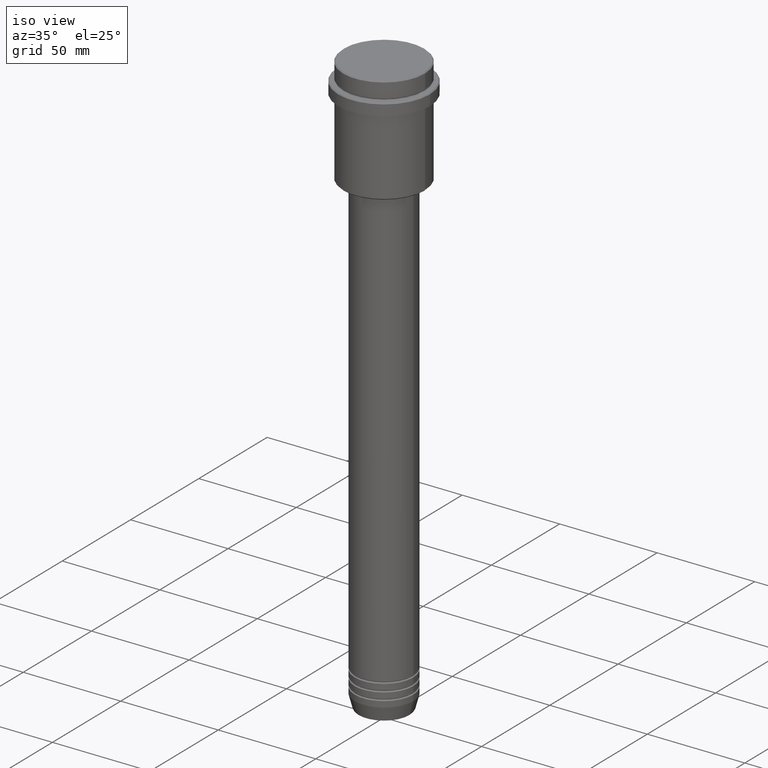
[diagram: clean part render]
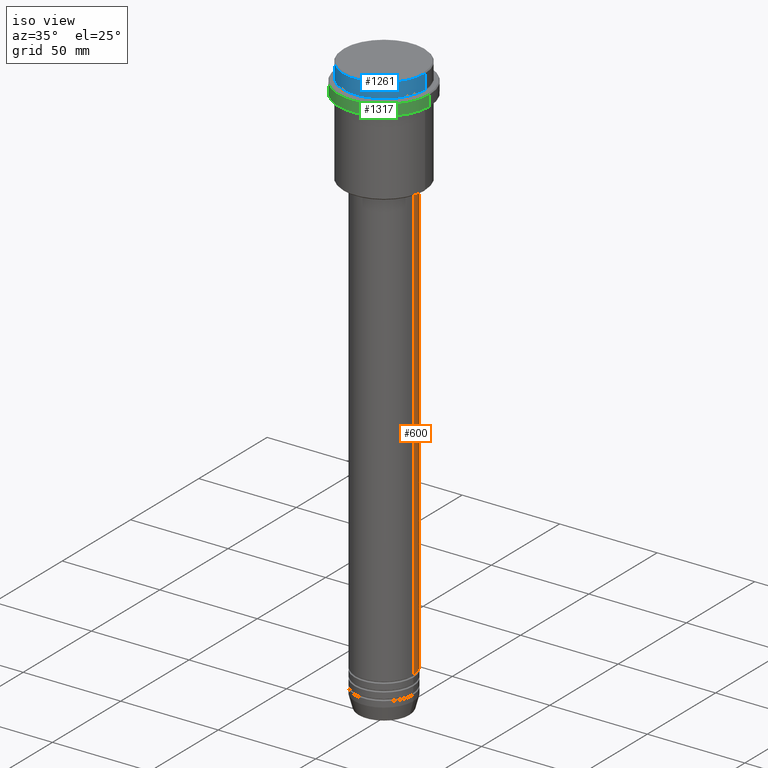
[diagram: same view with three faces highlighted in distinct colors, each labeled with its STEP entity id]
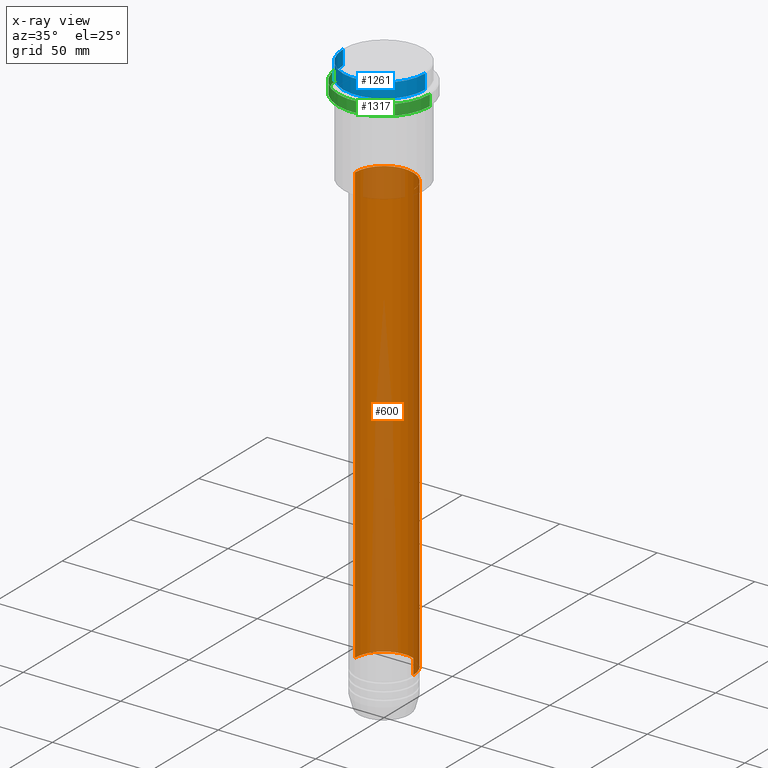
[diagram: x-ray of the same camera — body ghosted, the three highlighted faces saturated]
A machine part, iso view with three faces highlighted in distinct colors.
The next image is the same camera in x-ray (body ghosted, the three faces saturated) — at least one of them is partly hidden behind the body in this view.
Their STEP definitions:

[orange] entity #600 — the highlighted cylindrical surface (edge-blend (fillet) strip) has radius 15 mm, axis along (-0, -0, 1).
#3 = CARTESIAN_POINT ( 'NONE',  ( 15.00000000000000000, 0.000000000000000000, 0.000000000000000000 ) ) ;
#20 = EDGE_CURVE ( 'NONE', #144, #1086, #257, .T. ) ;
#24 = CARTESIAN_POINT ( 'NONE',  ( 0.000000000000000000, 0.000000000000000000, -55.99999999999990763 ) ) ;
#28 = EDGE_CURVE ( 'NONE', #144, #1212, #223, .T. ) ;
#62 = FACE_OUTER_BOUND ( 'NONE', #192, .T. ) ;
#70 = CYLINDRICAL_SURFACE ( 'NONE', #818, 15.00000000000000000 ) ;
#73 = VERTEX_POINT ( 'NONE', #995 ) ;
#87 = CARTESIAN_POINT ( 'NONE',  ( 0.000000000000000000, 0.000000000000000000, -280.9999999999998863 ) ) ;
#132 = LINE ( 'NONE', #568, #386 ) ;
#140 = DIRECTION ( 'NONE',  ( -0.000000000000000000, -0.000000000000000000, 1.000000000000000000 ) ) ;
#144 = VERTEX_POINT ( 'NONE', #627 ) ;
#181 = VECTOR ( 'NONE', #140, 1000.000000000000000 ) ;
#192 = EDGE_LOOP ( 'NONE', ( #560, #264, #1061, #780 ) ) ;
#223 = LINE ( 'NONE', #3, #181 ) ;
#257 = CIRCLE ( 'NONE', #358, 15.00000000000000000 ) ;
#264 = ORIENTED_EDGE ( 'NONE', *, *, #477, .T. ) ;
#292 = DIRECTION ( 'NONE',  ( 1.000000000000000000, 0.000000000000000000, 0.000000000000000000 ) ) ;
#358 = AXIS2_PLACEMENT_3D ( 'NONE', #87, #845, #850 ) ;
#384 = DIRECTION ( 'NONE',  ( 1.000000000000000000, 0.000000000000000000, 0.000000000000000000 ) ) ;
#386 = VECTOR ( 'NONE', #460, 1000.000000000000000 ) ;
#393 = DIRECTION ( 'NONE',  ( -0.000000000000000000, -0.000000000000000000, 1.000000000000000000 ) ) ;
#460 = DIRECTION ( 'NONE',  ( -0.000000000000000000, -0.000000000000000000, 1.000000000000000000 ) ) ;
#477 = EDGE_CURVE ( 'NONE', #1086, #73, #132, .T. ) ;
#560 = ORIENTED_EDGE ( 'NONE', *, *, #20, .T. ) ;
#568 = CARTESIAN_POINT ( 'NONE',  ( -15.00000000000000000, 1.836970198721029589E-15, 0.000000000000000000 ) ) ;
#600 = ADVANCED_FACE ( 'NONE', ( #62 ), #70, .T. ) ;
#612 = AXIS2_PLACEMENT_3D ( 'NONE', #24, #1237, #384 ) ;
#621 = CARTESIAN_POINT ( 'NONE',  ( 15.00000000000000000, 0.000000000000000000, -55.99999999999990763 ) ) ;
#627 = CARTESIAN_POINT ( 'NONE',  ( 15.00000000000000000, 0.000000000000000000, -280.9999999999998863 ) ) ;
#780 = ORIENTED_EDGE ( 'NONE', *, *, #28, .F. ) ;
#818 = AXIS2_PLACEMENT_3D ( 'NONE', #1149, #393, #292 ) ;
#845 = DIRECTION ( 'NONE',  ( -0.000000000000000000, -0.000000000000000000, 1.000000000000000000 ) ) ;
#850 = DIRECTION ( 'NONE',  ( 1.000000000000000000, 0.000000000000000000, 0.000000000000000000 ) ) ;
#933 = CIRCLE ( 'NONE', #612, 15.00000000000000000 ) ;
#995 = CARTESIAN_POINT ( 'NONE',  ( -15.00000000000000000, 1.836970198721029589E-15, -55.99999999999990763 ) ) ;
#1061 = ORIENTED_EDGE ( 'NONE', *, *, #1396, .F. ) ;
#1086 = VERTEX_POINT ( 'NONE', #1389 ) ;
#1149 = CARTESIAN_POINT ( 'NONE',  ( 0.000000000000000000, 0.000000000000000000, 0.000000000000000000 ) ) ;
#1212 = VERTEX_POINT ( 'NONE', #621 ) ;
#1237 = DIRECTION ( 'NONE',  ( -0.000000000000000000, -0.000000000000000000, 1.000000000000000000 ) ) ;
#1389 = CARTESIAN_POINT ( 'NONE',  ( -15.00000000000000000, 1.836970198721029589E-15, -280.9999999999998863 ) ) ;
#1396 = EDGE_CURVE ( 'NONE', #1212, #73, #933, .T. ) ;

[blue] entity #1261 — the highlighted cylindrical surface (partial cylindrical patch) has radius 21 mm, axis along (-0, -0, 1).
#102 = LINE ( 'NONE', #968, #385 ) ;
#220 = ORIENTED_EDGE ( 'NONE', *, *, #945, .T. ) ;
#226 = EDGE_CURVE ( 'NONE', #726, #936, #102, .T. ) ;
#270 = ORIENTED_EDGE ( 'NONE', *, *, #226, .F. ) ;
#271 = CARTESIAN_POINT ( 'NONE',  ( 0.000000000000000000, 0.000000000000000000, -0.4999999999999553690 ) ) ;
#321 = DIRECTION ( 'NONE',  ( 1.000000000000000000, 0.000000000000000000, 0.000000000000000000 ) ) ;
#323 = EDGE_CURVE ( 'NONE', #726, #762, #1142, .T. ) ;
#357 = CIRCLE ( 'NONE', #717, 21.00000000000000000 ) ;
#385 = VECTOR ( 'NONE', #748, 1000.000000000000000 ) ;
#415 = DIRECTION ( 'NONE',  ( -0.000000000000000000, -0.000000000000000000, 1.000000000000000000 ) ) ;
#444 = DIRECTION ( 'NONE',  ( -0.000000000000000000, -0.000000000000000000, 1.000000000000000000 ) ) ;
#448 = CARTESIAN_POINT ( 'NONE',  ( 21.00000000000000000, 0.000000000000000000, -0.4999999999999553690 ) ) ;
#508 = CARTESIAN_POINT ( 'NONE',  ( -21.00000000000000000, 2.571758278209441661E-15, -7.999999999999998224 ) ) ;
#515 = ORIENTED_EDGE ( 'NONE', *, *, #323, .T. ) ;
#534 = CARTESIAN_POINT ( 'NONE',  ( 21.00000000000000000, 0.000000000000000000, -7.999999999999998224 ) ) ;
#687 = CARTESIAN_POINT ( 'NONE',  ( 21.00000000000000000, 0.000000000000000000, 0.000000000000000000 ) ) ;
#694 = DIRECTION ( 'NONE',  ( 0.000000000000000000, 0.000000000000000000, -1.000000000000000000 ) ) ;
#701 = AXIS2_PLACEMENT_3D ( 'NONE', #1399, #415, #321 ) ;
#717 = AXIS2_PLACEMENT_3D ( 'NONE', #271, #694, #1349 ) ;
#726 = VERTEX_POINT ( 'NONE', #508 ) ;
#748 = DIRECTION ( 'NONE',  ( -0.000000000000000000, -0.000000000000000000, 1.000000000000000000 ) ) ;
#762 = VERTEX_POINT ( 'NONE', #534 ) ;
#867 = DIRECTION ( 'NONE',  ( 1.000000000000000000, 0.000000000000000000, 0.000000000000000000 ) ) ;
#903 = VERTEX_POINT ( 'NONE', #448 ) ;
#906 = DIRECTION ( 'NONE',  ( -0.000000000000000000, -0.000000000000000000, 1.000000000000000000 ) ) ;
#936 = VERTEX_POINT ( 'NONE', #1137 ) ;
#945 = EDGE_CURVE ( 'NONE', #903, #936, #357, .T. ) ;
#968 = CARTESIAN_POINT ( 'NONE',  ( -21.00000000000000000, 2.571758278209441661E-15, 0.000000000000000000 ) ) ;
#1062 = ORIENTED_EDGE ( 'NONE', *, *, #1413, .T. ) ;
#1069 = VECTOR ( 'NONE', #906, 1000.000000000000000 ) ;
#1082 = CARTESIAN_POINT ( 'NONE',  ( 0.000000000000000000, 0.000000000000000000, 0.000000000000000000 ) ) ;
#1108 = EDGE_LOOP ( 'NONE', ( #270, #515, #1062, #220 ) ) ;
#1121 = LINE ( 'NONE', #687, #1069 ) ;
#1137 = CARTESIAN_POINT ( 'NONE',  ( -21.00000000000000000, 2.571758278209441661E-15, -0.4999999999999553690 ) ) ;
#1142 = CIRCLE ( 'NONE', #701, 21.00000000000000000 ) ;
#1199 = FACE_OUTER_BOUND ( 'NONE', #1108, .T. ) ;
#1208 = AXIS2_PLACEMENT_3D ( 'NONE', #1082, #444, #867 ) ;
#1210 = CYLINDRICAL_SURFACE ( 'NONE', #1208, 21.00000000000000000 ) ;
#1261 = ADVANCED_FACE ( 'NONE', ( #1199 ), #1210, .T. ) ;
#1349 = DIRECTION ( 'NONE',  ( 1.000000000000000000, 0.000000000000000000, 0.000000000000000000 ) ) ;
#1399 = CARTESIAN_POINT ( 'NONE',  ( 0.000000000000000000, 0.000000000000000000, -7.999999999999998224 ) ) ;
#1413 = EDGE_CURVE ( 'NONE', #762, #903, #1121, .T. ) ;

[green] entity #1317 — the highlighted cylindrical surface (partial cylindrical patch) has radius 23.5 mm, axis along (-0, -0, 1).
#6 = CARTESIAN_POINT ( 'NONE',  ( 0.000000000000000000, 0.000000000000000000, 0.000000000000000000 ) ) ;
#37 = LINE ( 'NONE', #474, #136 ) ;
#59 = VERTEX_POINT ( 'NONE', #456 ) ;
#126 = EDGE_CURVE ( 'NONE', #1250, #1330, #37, .T. ) ;
#136 = VECTOR ( 'NONE', #1243, 1000.000000000000000 ) ;
#165 = CARTESIAN_POINT ( 'NONE',  ( -23.50000000000000000, 2.877919977996280320E-15, 0.000000000000000000 ) ) ;
#237 = EDGE_CURVE ( 'NONE', #59, #1250, #838, .T. ) ;
#278 = DIRECTION ( 'NONE',  ( 0.000000000000000000, 0.000000000000000000, -1.000000000000000000 ) ) ;
#341 = DIRECTION ( 'NONE',  ( 1.000000000000000000, 0.000000000000000000, 0.000000000000000000 ) ) ;
#350 = VERTEX_POINT ( 'NONE', #1307 ) ;
#424 = FACE_OUTER_BOUND ( 'NONE', #1039, .T. ) ;
#456 = CARTESIAN_POINT ( 'NONE',  ( -23.50000000000000711, 2.877919977996281109E-15, -15.00000000000000000 ) ) ;
#474 = CARTESIAN_POINT ( 'NONE',  ( 23.50000000000000000, 0.000000000000000000, 0.000000000000000000 ) ) ;
#478 = CIRCLE ( 'NONE', #795, 23.50000000000000000 ) ;
#549 = EDGE_CURVE ( 'NONE', #59, #350, #1351, .T. ) ;
#573 = CARTESIAN_POINT ( 'NONE',  ( 23.50000000000000355, 0.000000000000000000, -15.00000000000000000 ) ) ;
#577 = ORIENTED_EDGE ( 'NONE', *, *, #237, .T. ) ;
#602 = DIRECTION ( 'NONE',  ( -0.000000000000000000, -0.000000000000000000, 1.000000000000000000 ) ) ;
#637 = CARTESIAN_POINT ( 'NONE',  ( 0.000000000000000000, 0.000000000000000000, -15.00000000000000000 ) ) ;
#667 = DIRECTION ( 'NONE',  ( -0.000000000000000000, -0.000000000000000000, 1.000000000000000000 ) ) ;
#693 = DIRECTION ( 'NONE',  ( 1.000000000000000000, 0.000000000000000000, 0.000000000000000000 ) ) ;
#741 = VECTOR ( 'NONE', #602, 1000.000000000000000 ) ;
#795 = AXIS2_PLACEMENT_3D ( 'NONE', #1151, #278, #693 ) ;
#838 = CIRCLE ( 'NONE', #1022, 23.50000000000000355 ) ;
#860 = CYLINDRICAL_SURFACE ( 'NONE', #885, 23.50000000000000000 ) ;
#885 = AXIS2_PLACEMENT_3D ( 'NONE', #6, #667, #341 ) ;
#919 = ORIENTED_EDGE ( 'NONE', *, *, #1387, .T. ) ;
#1022 = AXIS2_PLACEMENT_3D ( 'NONE', #637, #1169, #1394 ) ;
#1039 = EDGE_LOOP ( 'NONE', ( #1395, #577, #1343, #919 ) ) ;
#1151 = CARTESIAN_POINT ( 'NONE',  ( 0.000000000000000000, 0.000000000000000000, -9.499999999999944933 ) ) ;
#1169 = DIRECTION ( 'NONE',  ( -0.000000000000000000, -0.000000000000000000, 1.000000000000000000 ) ) ;
#1243 = DIRECTION ( 'NONE',  ( -0.000000000000000000, -0.000000000000000000, 1.000000000000000000 ) ) ;
#1250 = VERTEX_POINT ( 'NONE', #573 ) ;
#1305 = CARTESIAN_POINT ( 'NONE',  ( 23.50000000000000000, 0.000000000000000000, -9.499999999999944933 ) ) ;
#1307 = CARTESIAN_POINT ( 'NONE',  ( -23.50000000000000000, 2.877919977996280320E-15, -9.499999999999944933 ) ) ;
#1317 = ADVANCED_FACE ( 'NONE', ( #424 ), #860, .T. ) ;
#1330 = VERTEX_POINT ( 'NONE', #1305 ) ;
#1343 = ORIENTED_EDGE ( 'NONE', *, *, #126, .T. ) ;
#1351 = LINE ( 'NONE', #165, #741 ) ;
#1387 = EDGE_CURVE ( 'NONE', #1330, #350, #478, .T. ) ;
#1394 = DIRECTION ( 'NONE',  ( 1.000000000000000000, 0.000000000000000000, 0.000000000000000000 ) ) ;
#1395 = ORIENTED_EDGE ( 'NONE', *, *, #549, .F. ) ;